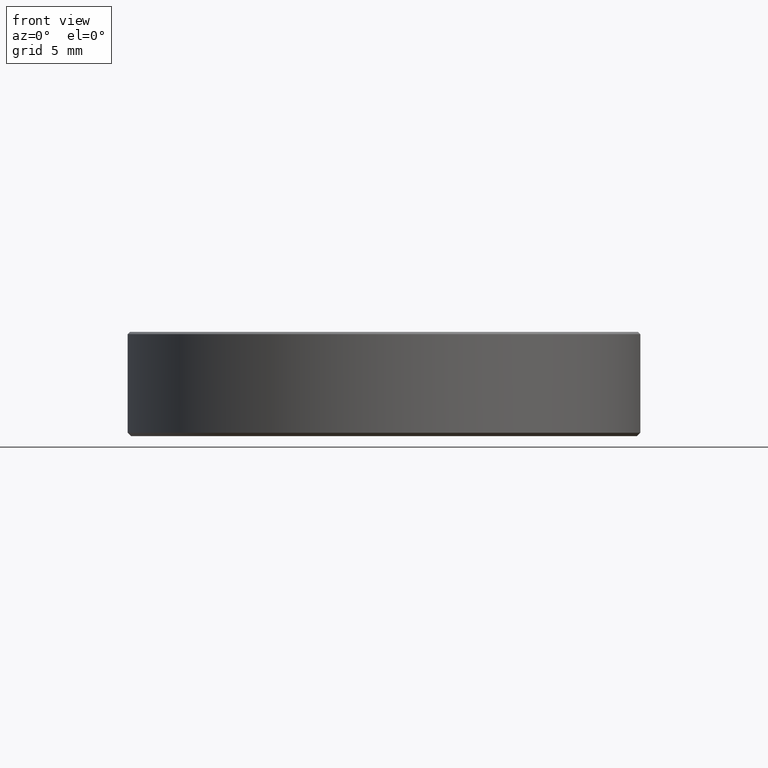
[diagram: clean part render]
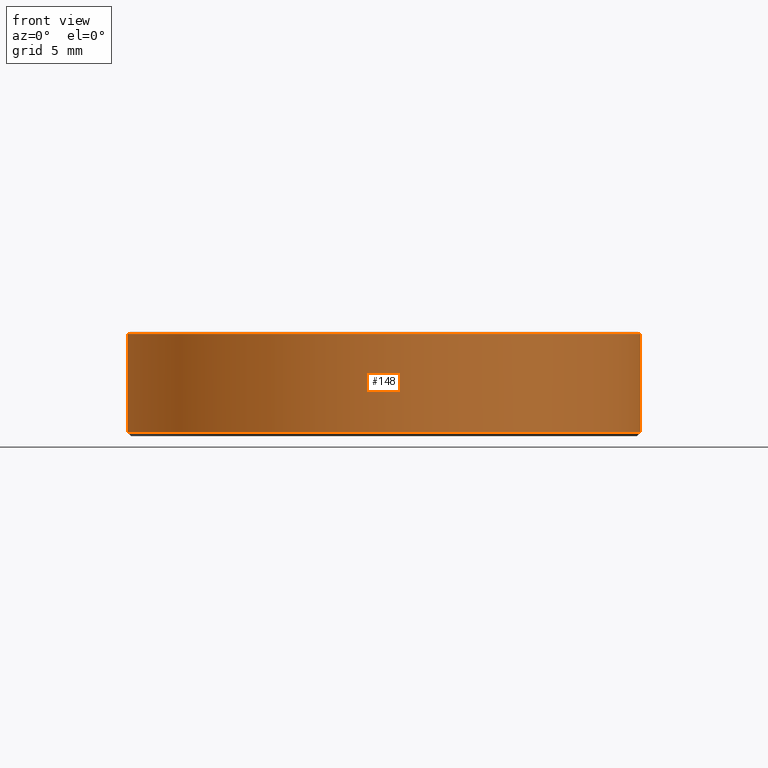
[diagram: same view with one face highlighted and labeled with its STEP entity id]
A machine part, front view. The second image highlights one B-rep face of the part: STEP entity #148.
In plain terms, the highlighted cylindrical surface (partial cylindrical patch) has radius 15 mm, axis along (-0, -0, 1).
Its self-contained STEP definition (entity closure, byte-faithful):
#6 = VECTOR ( 'NONE', #93, 1000.000000000000000 ) ;
#8 = DIRECTION ( 'NONE',  ( 1.000000000000000000, 0.000000000000000000, 0.000000000000000000 ) ) ;
#20 = CARTESIAN_POINT ( 'NONE',  ( -15.00000000000000000, 1.836970198721029589E-15, 0.2000000000000118072 ) ) ;
#27 = DIRECTION ( 'NONE',  ( -0.000000000000000000, -0.000000000000000000, 1.000000000000000000 ) ) ;
#32 = CIRCLE ( 'NONE', #182, 15.00000000000000000 ) ;
#33 = CARTESIAN_POINT ( 'NONE',  ( 15.00000000000000000, 0.000000000000000000, 2.500000000000000000 ) ) ;
#36 = EDGE_CURVE ( 'NONE', #225, #223, #32, .T. ) ;
#48 = EDGE_CURVE ( 'NONE', #82, #80, #214, .T. ) ;
#50 = CARTESIAN_POINT ( 'NONE',  ( 0.000000000000000000, 0.000000000000000000, 0.2000000000000118072 ) ) ;
#65 = EDGE_CURVE ( 'NONE', #225, #80, #86, .T. ) ;
#69 = CARTESIAN_POINT ( 'NONE',  ( -15.00000000000000000, 1.836970198721029589E-15, 5.969999999999999751 ) ) ;
#70 = VECTOR ( 'NONE', #188, 1000.000000000000000 ) ;
#80 = VERTEX_POINT ( 'NONE', #69 ) ;
#82 = VERTEX_POINT ( 'NONE', #251 ) ;
#85 = DIRECTION ( 'NONE',  ( 0.000000000000000000, 0.000000000000000000, -1.000000000000000000 ) ) ;
#86 = LINE ( 'NONE', #250, #70 ) ;
#88 = AXIS2_PLACEMENT_3D ( 'NONE', #114, #195, #8 ) ;
#91 = DIRECTION ( 'NONE',  ( 1.000000000000000000, 0.000000000000000000, 0.000000000000000000 ) ) ;
#93 = DIRECTION ( 'NONE',  ( -0.000000000000000000, -0.000000000000000000, 1.000000000000000000 ) ) ;
#114 = CARTESIAN_POINT ( 'NONE',  ( 0.000000000000000000, 0.000000000000000000, 2.500000000000000000 ) ) ;
#120 = ORIENTED_EDGE ( 'NONE', *, *, #65, .F. ) ;
#131 = CARTESIAN_POINT ( 'NONE',  ( 15.00000000000000000, 0.000000000000000000, 0.2000000000000118072 ) ) ;
#139 = ORIENTED_EDGE ( 'NONE', *, *, #178, .T. ) ;
#148 = ADVANCED_FACE ( 'NONE', ( #194 ), #216, .T. ) ;
#152 = LINE ( 'NONE', #33, #6 ) ;
#165 = EDGE_LOOP ( 'NONE', ( #120, #264, #139, #201 ) ) ;
#172 = CARTESIAN_POINT ( 'NONE',  ( 0.000000000000000000, 0.000000000000000000, 5.969999999999999751 ) ) ;
#173 = DIRECTION ( 'NONE',  ( -1.000000000000000000, 0.000000000000000000, 0.000000000000000000 ) ) ;
#178 = EDGE_CURVE ( 'NONE', #223, #82, #152, .T. ) ;
#182 = AXIS2_PLACEMENT_3D ( 'NONE', #50, #27, #91 ) ;
#188 = DIRECTION ( 'NONE',  ( -0.000000000000000000, -0.000000000000000000, 1.000000000000000000 ) ) ;
#194 = FACE_OUTER_BOUND ( 'NONE', #165, .T. ) ;
#195 = DIRECTION ( 'NONE',  ( -0.000000000000000000, -0.000000000000000000, 1.000000000000000000 ) ) ;
#201 = ORIENTED_EDGE ( 'NONE', *, *, #48, .T. ) ;
#208 = AXIS2_PLACEMENT_3D ( 'NONE', #172, #85, #173 ) ;
#214 = CIRCLE ( 'NONE', #208, 15.00000000000000000 ) ;
#216 = CYLINDRICAL_SURFACE ( 'NONE', #88, 15.00000000000000000 ) ;
#223 = VERTEX_POINT ( 'NONE', #131 ) ;
#225 = VERTEX_POINT ( 'NONE', #20 ) ;
#250 = CARTESIAN_POINT ( 'NONE',  ( -15.00000000000000000, 1.836970198721029589E-15, 2.500000000000000000 ) ) ;
#251 = CARTESIAN_POINT ( 'NONE',  ( 15.00000000000000000, 0.000000000000000000, 5.969999999999999751 ) ) ;
#264 = ORIENTED_EDGE ( 'NONE', *, *, #36, .T. ) ;